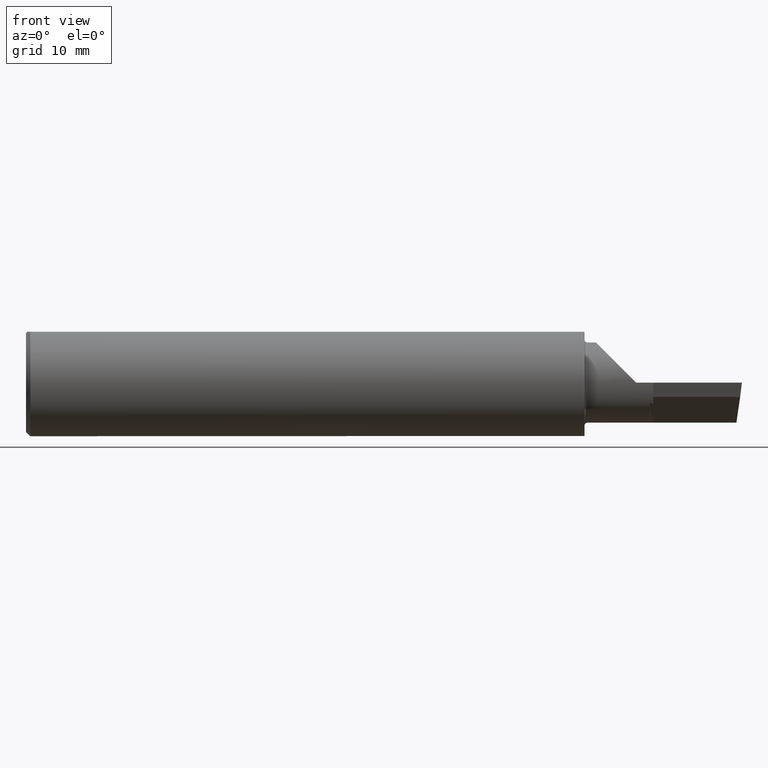
[diagram: clean part render]
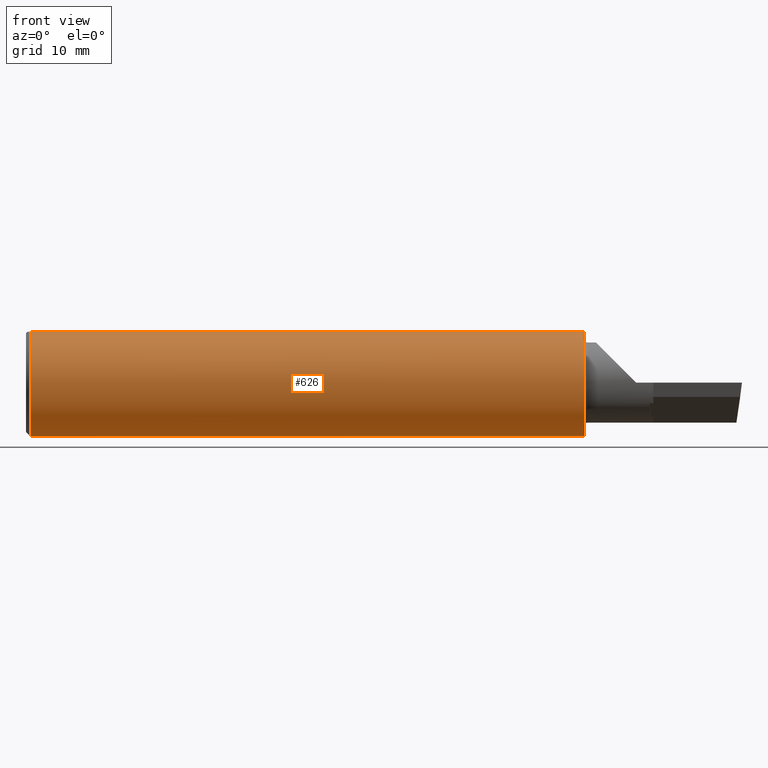
[diagram: same view with one face highlighted and labeled with its STEP entity id]
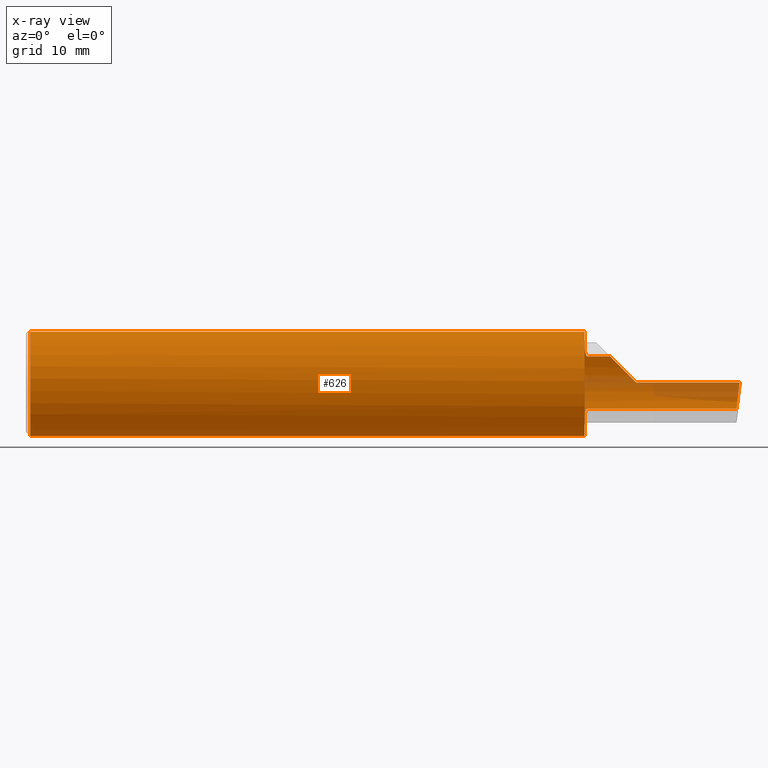
[diagram: x-ray of the same camera — body ghosted, the highlighted face saturated]
A machine part, front view. The second image highlights one B-rep face of the part: STEP entity #626.
The next image is the same camera in x-ray: the body ghosted, the highlighted face saturated — about 3% of this face is hidden behind the body in this view.
In plain terms, the highlighted cylindrical surface (partial cylindrical patch) has radius 4.7587 mm, axis along (-1, -0, -0).
Its self-contained STEP definition (entity closure, byte-faithful):
#1 = EDGE_CURVE ( 'NONE', #132, #534, #276, .T. ) ;
#6 = VERTEX_POINT ( 'NONE', #496 ) ;
#8 = DIRECTION ( 'NONE',  ( -1.000000000000000000, -0.000000000000000000, -0.000000000000000000 ) ) ;
#9 = ORIENTED_EDGE ( 'NONE', *, *, #113, .T. ) ;
#18 = CARTESIAN_POINT ( 'NONE',  ( 0.01499999999999997863, -0.06039039658753695555, 0.1773499999999999799 ) ) ;
#20 = ORIENTED_EDGE ( 'NONE', *, *, #30, .T. ) ;
#26 = FACE_OUTER_BOUND ( 'NONE', #134, .T. ) ;
#29 = CARTESIAN_POINT ( 'NONE',  ( 1.960000000000000409, 0.1635956445993033692, 0.09130436773856144550 ) ) ;
#30 = EDGE_CURVE ( 'NONE', #642, #160, #669, .T. ) ;
#32 = CARTESIAN_POINT ( 'NONE',  ( 1.960000000000000409, 0.1635956445993032859, -0.09130436773856151489 ) ) ;
#39 = LINE ( 'NONE', #273, #244 ) ;
#44 = VERTEX_POINT ( 'NONE', #166 ) ;
#46 = CARTESIAN_POINT ( 'NONE',  ( 1.960000000000000409, 0.1635956445993032859, -0.09130436773856151489 ) ) ;
#72 = EDGE_CURVE ( 'NONE', #160, #172, #756, .T. ) ;
#78 = DIRECTION ( 'NONE',  ( -1.000000000000000000, -0.000000000000000000, -0.000000000000000000 ) ) ;
#87 = VECTOR ( 'NONE', #126, 39.37007874015748143 ) ;
#91 = B_SPLINE_CURVE_WITH_KNOTS ( 'NONE', 3,
 ( #32, #208, #224, #96, #100, #336, #719, #741, #429, #680, #322, #663 ),
 .UNSPECIFIED., .F., .F.,
 ( 4, 2, 2, 2, 2, 4 ),
 ( 1.968964099585697359E-07, 7.414172666647628012E-05, 0.0001480865569229939868, 0.0002959762174360398086, 0.0005917555384621325364, 0.001183314180514314848 ),
 .UNSPECIFIED. ) ;
#96 = CARTESIAN_POINT ( 'NONE',  ( 1.956977885846546750, 0.1625039841807087992, -0.09323648621225517907 ) ) ;
#99 = DIRECTION ( 'NONE',  ( -1.000000000000000000, -0.000000000000000000, -0.000000000000000000 ) ) ;
#100 = CARTESIAN_POINT ( 'NONE',  ( 1.956503643436637185, 0.1620795007490430650, -0.09397341491037281003 ) ) ;
#111 = B_SPLINE_CURVE_WITH_KNOTS ( 'NONE', 3,
 ( #575, #229, #182, #171, #523, #297, #239, #289, #529, #462, #453, #467 ),
 .UNSPECIFIED., .F., .F.,
 ( 4, 2, 2, 2, 2, 4 ),
 ( 0.0009392928737449028100, 0.001524303482983961492, 0.001816808787603491158, 0.001963061439913260219, 0.002036187766068145184, 0.002109314092223030148 ),
 .UNSPECIFIED. ) ;
#113 = EDGE_CURVE ( 'NONE', #651, #664, #111, .T. ) ;
#121 = CARTESIAN_POINT ( 'NONE',  ( 2.484210015596427734, 0.1792580844883771285, -0.06324101202936127653 ) ) ;
#126 = DIRECTION ( 'NONE',  ( 1.000000000000000000, 0.000000000000000000, 0.000000000000000000 ) ) ;
#132 = VERTEX_POINT ( 'NONE', #178 ) ;
#134 = EDGE_LOOP ( 'NONE', ( #460, #253, #653, #20, #225, #363, #308, #746, #586, #9, #506, #678, #401 ) ) ;
#144 = DIRECTION ( 'NONE',  ( -1.000000000000000000, -0.000000000000000000, -0.000000000000000000 ) ) ;
#147 = CARTESIAN_POINT ( 'NONE',  ( 1.950000000000000178, 0.1383256097560974507, -0.1263568288047932642 ) ) ;
#148 = CARTESIAN_POINT ( 'NONE',  ( 0.01499999999999999424, 0.000000000000000000, -0.1873499999999999888 ) ) ;
#160 = VERTEX_POINT ( 'NONE', #455 ) ;
#166 = CARTESIAN_POINT ( 'NONE',  ( 2.129999999999999893, 0.1873499999999998222, 2.290089514405551589E-16 ) ) ;
#168 = CARTESIAN_POINT ( 'NONE',  ( 0.01499999999999999424, 0.06039039658753699719, 0.1773499999999999799 ) ) ;
#171 = CARTESIAN_POINT ( 'NONE',  ( 1.952291668372491351, 0.1548472237252446204, 0.1055305370847125779 ) ) ;
#172 = VERTEX_POINT ( 'NONE', #18 ) ;
#178 = CARTESIAN_POINT ( 'NONE',  ( 2.481306893948618697, 0.1635956445993030917, -0.09130436773856172306 ) ) ;
#182 = CARTESIAN_POINT ( 'NONE',  ( 1.950530357231195833, 0.1482623167742069259, 0.1147852156680472524 ) ) ;
#184 = VECTOR ( 'NONE', #8, 39.37007874015748143 ) ;
#186 = DIRECTION ( 'NONE',  ( 1.000000000000000000, 0.000000000000000000, 0.000000000000000000 ) ) ;
#188 = DIRECTION ( 'NONE',  ( 0.000000000000000000, 0.000000000000000000, 1.000000000000000000 ) ) ;
#189 = EDGE_CURVE ( 'NONE', #664, #509, #592, .T. ) ;
#194 = CARTESIAN_POINT ( 'NONE',  ( 2.075000000000000178, 0.1635956445993030917, 0.09130436773856172306 ) ) ;
#204 = CARTESIAN_POINT ( 'NONE',  ( 2.097861799102314961, 0.1873499999999999055, 0.03213820089768522348 ) ) ;
#206 = CYLINDRICAL_SURFACE ( 'NONE', #515, 0.1873499999999999888 ) ;
#207 = DIRECTION ( 'NONE',  ( 0.000000000000000000, 0.000000000000000000, 1.000000000000000000 ) ) ;
#208 = CARTESIAN_POINT ( 'NONE',  ( 1.959014641741962715, 0.1635956445993033692, -0.09130436773856129284 ) ) ;
#224 = CARTESIAN_POINT ( 'NONE',  ( 1.958200855161538634, 0.1632467142437138141, -0.09192985110639159685 ) ) ;
#225 = ORIENTED_EDGE ( 'NONE', *, *, #72, .T. ) ;
#229 = CARTESIAN_POINT ( 'NONE',  ( 1.950000000000000844, 0.1434410963562315899, 0.1207567927018308035 ) ) ;
#234 = EDGE_CURVE ( 'NONE', #391, #172, #724, .T. ) ;
#238 = CARTESIAN_POINT ( 'NONE',  ( 2.481306893948618697, 0.1635956445993030917, -0.09130436773856172306 ) ) ;
#239 = CARTESIAN_POINT ( 'NONE',  ( 1.955270962286581815, 0.1607994114084985160, 0.09615890281982612808 ) ) ;
#244 = VECTOR ( 'NONE', #572, 39.37007874015748143 ) ;
#249 = CARTESIAN_POINT ( 'NONE',  ( 1.950000000000000178, 0.000000000000000000, 0.000000000000000000 ) ) ;
#253 = ORIENTED_EDGE ( 'NONE', *, *, #1, .T. ) ;
#254 = LINE ( 'NONE', #320, #87 ) ;
#260 = CARTESIAN_POINT ( 'NONE',  ( 0.000000000000000000, 0.000000000000000000, 0.000000000000000000 ) ) ;
#273 = CARTESIAN_POINT ( 'NONE',  ( 0.000000000000000000, 0.06039039658753699719, 0.1773499999999999799 ) ) ;
#276 = LINE ( 'NONE', #451, #537 ) ;
#281 = EDGE_CURVE ( 'NONE', #415, #651, #307, .T. ) ;
#284 = AXIS2_PLACEMENT_3D ( 'NONE', #327, #432, #686 ) ;
#289 = CARTESIAN_POINT ( 'NONE',  ( 1.956530533518344495, 0.1621041320318384327, 0.09393089788995130640 ) ) ;
#297 = CARTESIAN_POINT ( 'NONE',  ( 1.954651161669207271, 0.1598575446545094647, 0.09771880834312045294 ) ) ;
#299 = CARTESIAN_POINT ( 'NONE',  ( 2.487675818857995935, 0.1873500000000000443, -0.03213820089768496674 ) ) ;
#307 = CIRCLE ( 'NONE', #740, 0.1873499999999999888 ) ;
#308 = ORIENTED_EDGE ( 'NONE', *, *, #359, .F. ) ;
#320 = CARTESIAN_POINT ( 'NONE',  ( 8.889029578031509911E-32, 0.1873499999999999610, 5.644462552563044730E-16 ) ) ;
#322 = CARTESIAN_POINT ( 'NONE',  ( 1.950000000000000844, 0.1434457138613162153, -0.1207517378170854805 ) ) ;
#327 = CARTESIAN_POINT ( 'NONE',  ( 1.950000000000000178, 0.000000000000000000, 0.000000000000000000 ) ) ;
#336 = CARTESIAN_POINT ( 'NONE',  ( 1.955249642630818352, 0.1607705839484634136, -0.09620717711675548511 ) ) ;
#342 = AXIS2_PLACEMENT_3D ( 'NONE', #510, #99, #207 ) ;
#359 = EDGE_CURVE ( 'NONE', #742, #391, #573, .T. ) ;
#363 = ORIENTED_EDGE ( 'NONE', *, *, #234, .F. ) ;
#383 = AXIS2_PLACEMENT_3D ( 'NONE', #659, #144, #588 ) ;
#391 = VERTEX_POINT ( 'NONE', #148 ) ;
#397 = CARTESIAN_POINT ( 'NONE',  ( 0.000000000000000000, -0.06039039658753694861, 0.1773499999999999799 ) ) ;
#401 = ORIENTED_EDGE ( 'NONE', *, *, #692, .T. ) ;
#403 = VECTOR ( 'NONE', #186, 39.37007874015748143 ) ;
#413 =( BOUNDED_CURVE ( )  B_SPLINE_CURVE ( 3, ( #238, #121, #299, #587 ),
 .UNSPECIFIED., .F., .F. ) 
 B_SPLINE_CURVE_WITH_KNOTS ( ( 4, 4 ),
 ( 0.8392337203534694368, 1.348282100702905106 ),
 .UNSPECIFIED. ) 
 CURVE ( )  GEOMETRIC_REPRESENTATION_ITEM ( )  RATIONAL_B_SPLINE_CURVE ( ( 1.000000000000000000, 0.9785221379938656705, 0.9785221379938656705, 1.000000000000000000 ) ) 
 REPRESENTATION_ITEM ( '' )  );
#415 = VERTEX_POINT ( 'NONE', #494 ) ;
#418 = EDGE_CURVE ( 'NONE', #509, #44, #440, .T. ) ;
#429 = CARTESIAN_POINT ( 'NONE',  ( 1.952284340146847708, 0.1548226717605718228, -0.1055657780131308426 ) ) ;
#432 = DIRECTION ( 'NONE',  ( -1.000000000000000000, -0.000000000000000000, -0.000000000000000000 ) ) ;
#440 =( BOUNDED_CURVE ( )  B_SPLINE_CURVE ( 3, ( #450, #730, #204, #560 ),
 .UNSPECIFIED., .F., .T. ) 
 B_SPLINE_CURVE_WITH_KNOTS ( ( 4, 4 ),
 ( 1.061747946445463553, 1.570796326794894560 ),
 .UNSPECIFIED. ) 
 CURVE ( )  GEOMETRIC_REPRESENTATION_ITEM ( )  RATIONAL_B_SPLINE_CURVE ( ( 1.000000000000000000, 0.9785221379938660036, 0.9785221379938660036, 1.000000000000000000 ) ) 
 REPRESENTATION_ITEM ( '' )  );
#446 = CARTESIAN_POINT ( 'NONE',  ( 2.038695632261438018, 0.1635956445993032582, 0.09130436773856147326 ) ) ;
#450 = CARTESIAN_POINT ( 'NONE',  ( 2.038695632261438018, 0.1635956445993032582, 0.09130436773856147326 ) ) ;
#451 = CARTESIAN_POINT ( 'NONE',  ( 2.075000000000000178, 0.1635956445993030917, -0.09130436773856172306 ) ) ;
#453 = CARTESIAN_POINT ( 'NONE',  ( 1.959029114488072265, 0.1635956446012899190, 0.09130436773500302805 ) ) ;
#455 = CARTESIAN_POINT ( 'NONE',  ( 1.950000000000000178, -0.06039039658753697637, 0.1773499999999999799 ) ) ;
#460 = ORIENTED_EDGE ( 'NONE', *, *, #585, .F. ) ;
#462 = CARTESIAN_POINT ( 'NONE',  ( 1.958216394543444983, 0.1632528125625393178, 0.09191892236923981940 ) ) ;
#467 = CARTESIAN_POINT ( 'NONE',  ( 1.960000000000000409, 0.1635956445993033692, 0.09130436773856144550 ) ) ;
#481 = DIRECTION ( 'NONE',  ( -1.000000000000000000, -0.000000000000000000, -0.000000000000000000 ) ) ;
#494 = CARTESIAN_POINT ( 'NONE',  ( 1.950000000000000178, 0.06039039658753701106, 0.1773499999999999799 ) ) ;
#496 = CARTESIAN_POINT ( 'NONE',  ( 2.491480989600745932, 0.1873499999999998777, 1.720566076660925670E-16 ) ) ;
#506 = ORIENTED_EDGE ( 'NONE', *, *, #189, .T. ) ;
#509 = VERTEX_POINT ( 'NONE', #446 ) ;
#510 = CARTESIAN_POINT ( 'NONE',  ( 0.01499999999999999424, 0.000000000000000000, 0.000000000000000000 ) ) ;
#515 = AXIS2_PLACEMENT_3D ( 'NONE', #260, #481, #656 ) ;
#523 = CARTESIAN_POINT ( 'NONE',  ( 1.953030094855348731, 0.1569359418858944089, 0.1023945457153803279 ) ) ;
#529 = CARTESIAN_POINT ( 'NONE',  ( 1.957002686248070500, 0.1625222757049328004, 0.09320450095779578281 ) ) ;
#534 = VERTEX_POINT ( 'NONE', #46 ) ;
#537 = VECTOR ( 'NONE', #568, 39.37007874015748143 ) ;
#547 = EDGE_CURVE ( 'NONE', #534, #642, #91, .T. ) ;
#551 = CARTESIAN_POINT ( 'NONE',  ( 1.950000000000000178, 0.1383256097560974507, 0.1263568288047932642 ) ) ;
#560 = CARTESIAN_POINT ( 'NONE',  ( 2.129999999999999893, 0.1873499999999998222, 2.290089514405551589E-16 ) ) ;
#568 = DIRECTION ( 'NONE',  ( -1.000000000000000000, -0.000000000000000000, -0.000000000000000000 ) ) ;
#572 = DIRECTION ( 'NONE',  ( 1.000000000000000000, 0.000000000000000000, 0.000000000000000000 ) ) ;
#573 = CIRCLE ( 'NONE', #342, 0.1873499999999999888 ) ;
#575 = CARTESIAN_POINT ( 'NONE',  ( 1.950000000000000178, 0.1383256097560974507, 0.1263568288047932642 ) ) ;
#585 = EDGE_CURVE ( 'NONE', #132, #6, #413, .T. ) ;
#586 = ORIENTED_EDGE ( 'NONE', *, *, #281, .T. ) ;
#587 = CARTESIAN_POINT ( 'NONE',  ( 2.491480989600745932, 0.1873499999999998777, 1.720566076660925670E-16 ) ) ;
#588 = DIRECTION ( 'NONE',  ( 0.000000000000000000, 0.000000000000000000, 1.000000000000000000 ) ) ;
#592 = LINE ( 'NONE', #194, #403 ) ;
#626 = ADVANCED_FACE ( 'NONE', ( #26 ), #206, .T. ) ;
#642 = VERTEX_POINT ( 'NONE', #147 ) ;
#651 = VERTEX_POINT ( 'NONE', #551 ) ;
#653 = ORIENTED_EDGE ( 'NONE', *, *, #547, .T. ) ;
#656 = DIRECTION ( 'NONE',  ( 0.000000000000000000, 0.000000000000000000, 1.000000000000000000 ) ) ;
#659 = CARTESIAN_POINT ( 'NONE',  ( 0.01499999999999999424, 0.000000000000000000, 0.000000000000000000 ) ) ;
#663 = CARTESIAN_POINT ( 'NONE',  ( 1.950000000000000178, 0.1383256097560974507, -0.1263568288047932642 ) ) ;
#664 = VERTEX_POINT ( 'NONE', #29 ) ;
#669 = CIRCLE ( 'NONE', #284, 0.1873499999999999888 ) ;
#678 = ORIENTED_EDGE ( 'NONE', *, *, #418, .T. ) ;
#680 = CARTESIAN_POINT ( 'NONE',  ( 1.950535130224572145, 0.1482744458446706992, -0.1147666934430600361 ) ) ;
#686 = DIRECTION ( 'NONE',  ( 0.000000000000000000, 0.000000000000000000, 1.000000000000000000 ) ) ;
#692 = EDGE_CURVE ( 'NONE', #44, #6, #254, .T. ) ;
#719 = CARTESIAN_POINT ( 'NONE',  ( 1.954627300813619017, 0.1598199155693383056, -0.09778034674766593326 ) ) ;
#724 = CIRCLE ( 'NONE', #383, 0.1873499999999999888 ) ;
#730 = CARTESIAN_POINT ( 'NONE',  ( 2.066758987970638284, 0.1792580844883770730, 0.06324101202936123489 ) ) ;
#740 = AXIS2_PLACEMENT_3D ( 'NONE', #249, #78, #188 ) ;
#741 = CARTESIAN_POINT ( 'NONE',  ( 1.953013987655237926, 0.1568958379530030200, -0.1024560150687152948 ) ) ;
#742 = VERTEX_POINT ( 'NONE', #168 ) ;
#746 = ORIENTED_EDGE ( 'NONE', *, *, #747, .T. ) ;
#747 = EDGE_CURVE ( 'NONE', #742, #415, #39, .T. ) ;
#756 = LINE ( 'NONE', #397, #184 ) ;